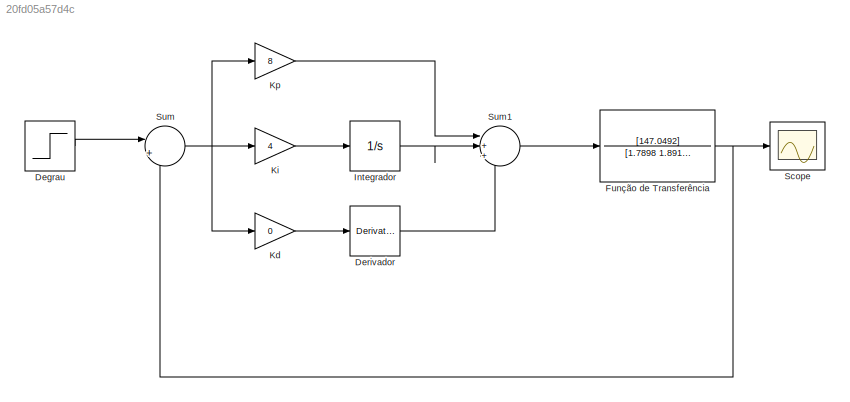
MODEL slx_20fd05a57d4c
KIND model
CONFIG AbsTol = auto
CONFIG EnableMultiTasking = off
CONFIG FixedStep = auto
CONFIG MaxStep = auto
CONFIG MinStep = auto
CONFIG RelTol = 1e-3
CONFIG SampleTimeConstraint = Unconstrained
CONFIG SolverName = VariableStepAuto
CONFIG StartTime = 0.0
CONFIG StopTime = 83.0
BLOCK [Step] Degrau
  After = 60
  SampleTime = 0
BLOCK [Derivative] Derivador
BLOCK [TransferFcn] Função de Transferência
  Denominator = [1.7898 1.8913]
  Numerator = [147.0492]
BLOCK [Integrator] Integrador
BLOCK [Gain] Kd
  Gain = 0
BLOCK [Gain] Ki
  Gain = 4
BLOCK [Gain] Kp
  Gain = 8
BLOCK [Scope] Scope
  Floating = off
  NumInputPorts = 1
  ScopeSpecificationString = Simulink.scopes.TimeScopeBlockCfg('CurrentConfiguration', extmgr.ConfigurationSet(extmgr.Configuration('Core','General UI',true),extmgr.Configuration('Core','Source UI',true),extmgr.Configuration('Sources','WiredSimulink',true),extmgr.Configuration('Visuals','Time Domain',true,'SerializedDisplays',{struct('MinYLimReal','-8.76199','MaxYLimReal','78.85791','YLabelReal','','MinYLimMag','0.00000','Max...<+1420ch>
BLOCK [Sum] Sum
  Inputs = |+-
BLOCK [Sum] Sum1
  Inputs = |+++
LINE Degrau:1 -> Sum:1
LINE Derivador:1 -> Sum1:3
NET Função de Transferência:1 -> Scope:1, Sum:2
LINE Integrador:1 -> Sum1:2
LINE Kd:1 -> Derivador:1
LINE Ki:1 -> Integrador:1
LINE Kp:1 -> Sum1:1
LINE Sum1:1 -> Função de Transferência:1
NET Sum:1 -> Kd:1, Ki:1, Kp:1
note: NET lines group one-source signal fan-out (src -> all destinations, sorted); 1:1 wires keep LINE
